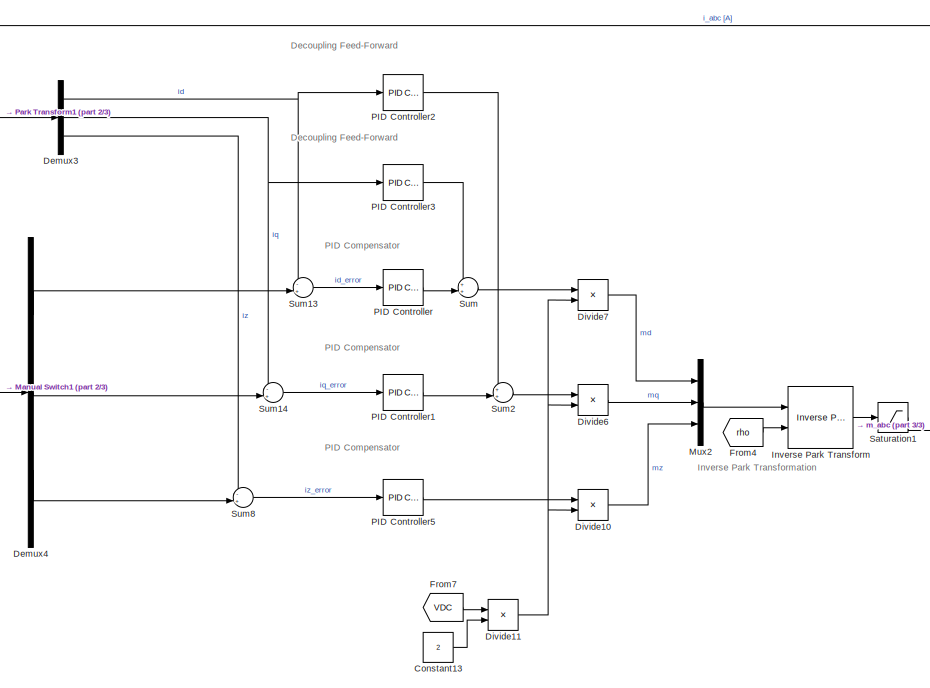
[diagram: root canvas - part 1/3, center side, full height]
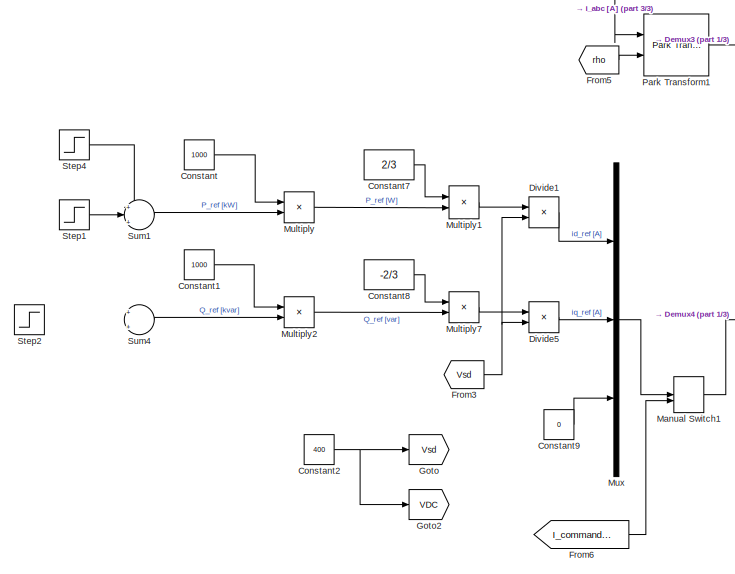
[diagram: root canvas - part 2/3, left side, full height]
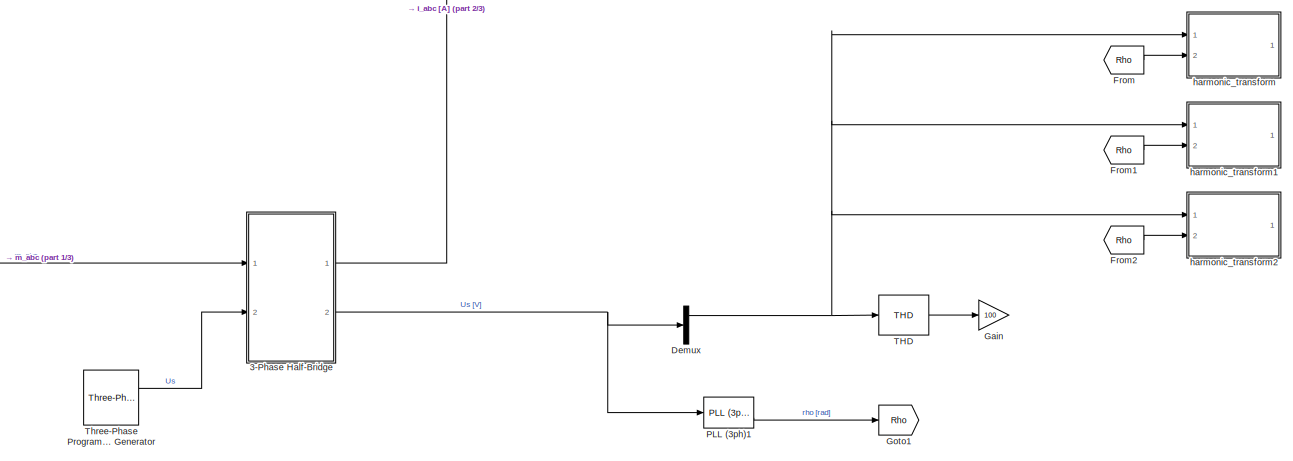
[diagram: root canvas - part 3/3, middle right region]
MODEL slx_9efd150aca10
KIND model
CONFIG AbsTol = auto
CONFIG EnableMultiTasking = on
CONFIG FixedStep = auto
CONFIG MaxStep = 0.001
CONFIG MinStep = auto
CONFIG RelTol = 1e-4
CONFIG SampleTimeConstraint = Unconstrained
CONFIG Solver = VariableStepAuto
CONFIG SolverName = VariableStepAuto
CONFIG StartTime = 0.0
CONFIG StopTime = 0.75
WORKSPACE source: mxarray member
WORKSPACE f0 = 50
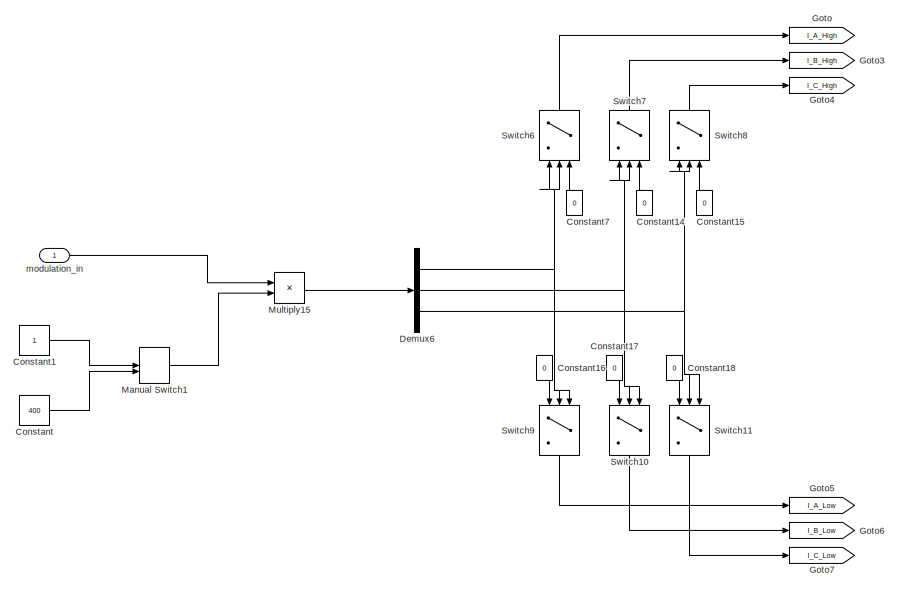
[diagram: 3-Phase Half-Bridge - part 1/3, top left region]
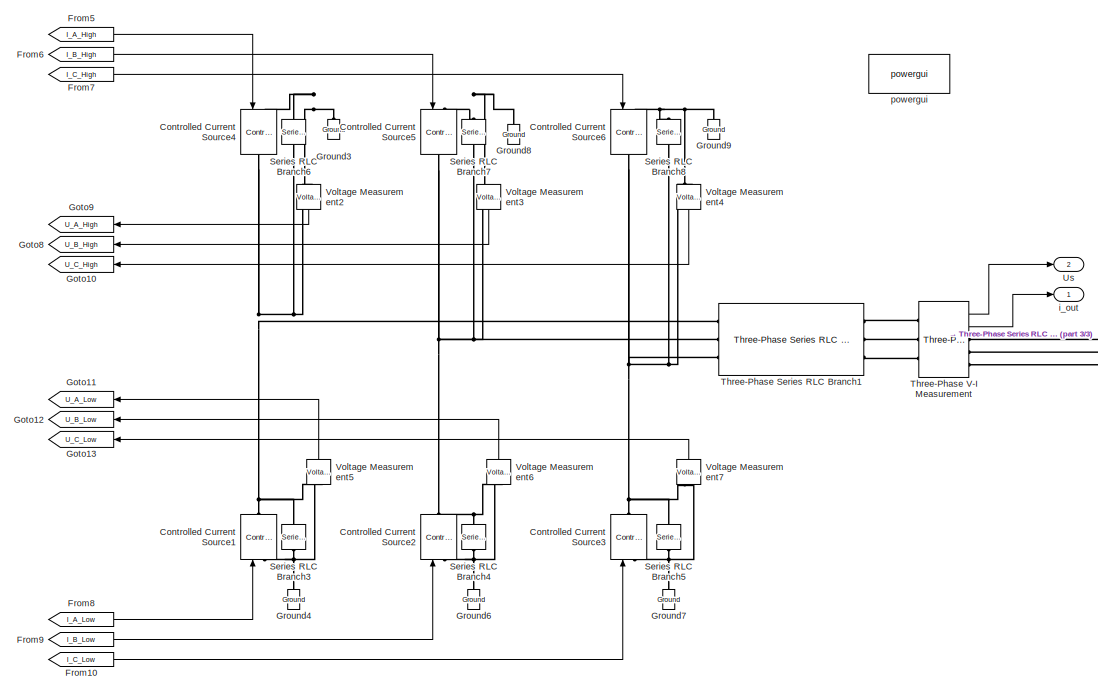
[diagram: 3-Phase Half-Bridge - part 2/3, bottom center region]
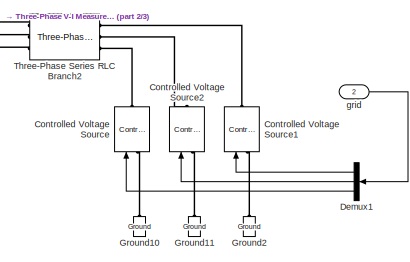
[diagram: 3-Phase Half-Bridge - part 3/3, bottom right region]
BLOCK [SubSystem] 3-Phase Half-Bridge
  Ports = [2, 2]
  RequestExecContextInheritance = off
BLOCK [Constant] 3-Phase Half-Bridge/Constant
  Value = 400
BLOCK [Constant] 3-Phase Half-Bridge/Constant1
BLOCK [Constant] 3-Phase Half-Bridge/Constant14
  NameLocation = left
  Value = 0
BLOCK [Constant] 3-Phase Half-Bridge/Constant15
  NameLocation = left
  Value = 0
BLOCK [Constant] 3-Phase Half-Bridge/Constant16
  NameLocation = left
  Value = 0
BLOCK [Constant] 3-Phase Half-Bridge/Constant17
  NameLocation = left
  Value = 0
BLOCK [Constant] 3-Phase Half-Bridge/Constant18
  NameLocation = left
  Value = 0
BLOCK [Constant] 3-Phase Half-Bridge/Constant7
  NameLocation = left
  Value = 0
BLOCK [Reference] 3-Phase Half-Bridge/Controlled Current Source1  REF=powerlib/Electrical
Sources/Controlled Current Source
  NameLocation = right
  Ports = [1, 0, 0, 0, 0, 1, 1]
  SourceBlock = powerlib/Electrical\nSources/Controlled Current Source
  SourceProductBaseCode = PS
  SourceType = Controlled Current Source
BLOCK [Reference] 3-Phase Half-Bridge/Controlled Current Source2  REF=powerlib/Electrical
Sources/Controlled Current Source
  NameLocation = right
  Ports = [1, 0, 0, 0, 0, 1, 1]
  SourceBlock = powerlib/Electrical\nSources/Controlled Current Source
  SourceProductBaseCode = PS
  SourceType = Controlled Current Source
BLOCK [Reference] 3-Phase Half-Bridge/Controlled Current Source3  REF=powerlib/Electrical
Sources/Controlled Current Source
  NameLocation = right
  Ports = [1, 0, 0, 0, 0, 1, 1]
  SourceBlock = powerlib/Electrical\nSources/Controlled Current Source
  SourceProductBaseCode = PS
  SourceType = Controlled Current Source
BLOCK [Reference] 3-Phase Half-Bridge/Controlled Current Source4  REF=powerlib/Electrical
Sources/Controlled Current Source
  NameLocation = right
  Ports = [1, 0, 0, 0, 0, 1, 1]
  SourceBlock = powerlib/Electrical\nSources/Controlled Current Source
  SourceProductBaseCode = PS
  SourceType = Controlled Current Source
BLOCK [Reference] 3-Phase Half-Bridge/Controlled Current Source5  REF=powerlib/Electrical
Sources/Controlled Current Source
  NameLocation = right
  Ports = [1, 0, 0, 0, 0, 1, 1]
  SourceBlock = powerlib/Electrical\nSources/Controlled Current Source
  SourceProductBaseCode = PS
  SourceType = Controlled Current Source
BLOCK [Reference] 3-Phase Half-Bridge/Controlled Current Source6  REF=powerlib/Electrical
Sources/Controlled Current Source
  NameLocation = right
  Ports = [1, 0, 0, 0, 0, 1, 1]
  SourceBlock = powerlib/Electrical\nSources/Controlled Current Source
  SourceProductBaseCode = PS
  SourceType = Controlled Current Source
BLOCK [Reference] 3-Phase Half-Bridge/Controlled Voltage Source  REF=powerlib/Electrical
Sources/Controlled Voltage Source
  NameLocation = right
  Ports = [1, 0, 0, 0, 0, 1, 1]
  SourceBlock = powerlib/Electrical\nSources/Controlled Voltage Source
  SourceProductBaseCode = PS
  SourceType = Controlled Voltage Source
BLOCK [Reference] 3-Phase Half-Bridge/Controlled Voltage Source1  REF=powerlib/Electrical
Sources/Controlled Voltage Source
  NameLocation = right
  Ports = [1, 0, 0, 0, 0, 1, 1]
  SourceBlock = powerlib/Electrical\nSources/Controlled Voltage Source
  SourceProductBaseCode = PS
  SourceType = Controlled Voltage Source
BLOCK [Reference] 3-Phase Half-Bridge/Controlled Voltage Source2  REF=powerlib/Electrical
Sources/Controlled Voltage Source
  NameLocation = right
  Ports = [1, 0, 0, 0, 0, 1, 1]
  SourceBlock = powerlib/Electrical\nSources/Controlled Voltage Source
  SourceProductBaseCode = PS
  SourceType = Controlled Voltage Source
BLOCK [Demux] 3-Phase Half-Bridge/Demux1
  Outputs = 3
  Ports = [1, 3]
BLOCK [Demux] 3-Phase Half-Bridge/Demux6
  Outputs = 3
  Ports = [1, 3]
BLOCK [From] 3-Phase Half-Bridge/From10
  GotoTag = I_C_Low
BLOCK [From] 3-Phase Half-Bridge/From5
  GotoTag = I_A_High
BLOCK [From] 3-Phase Half-Bridge/From6
  GotoTag = I_B_High
BLOCK [From] 3-Phase Half-Bridge/From7
  GotoTag = I_C_High
BLOCK [From] 3-Phase Half-Bridge/From8
  GotoTag = I_A_Low
BLOCK [From] 3-Phase Half-Bridge/From9
  GotoTag = I_B_Low
BLOCK [Goto] 3-Phase Half-Bridge/Goto
  GotoTag = I_A_High
BLOCK [Goto] 3-Phase Half-Bridge/Goto10
  GotoTag = U_C_High
BLOCK [Goto] 3-Phase Half-Bridge/Goto11
  GotoTag = U_A_Low
BLOCK [Goto] 3-Phase Half-Bridge/Goto12
  GotoTag = U_B_Low
BLOCK [Goto] 3-Phase Half-Bridge/Goto13
  GotoTag = U_C_Low
BLOCK [Goto] 3-Phase Half-Bridge/Goto3
  GotoTag = I_B_High
BLOCK [Goto] 3-Phase Half-Bridge/Goto4
  GotoTag = I_C_High
BLOCK [Goto] 3-Phase Half-Bridge/Goto5
  GotoTag = I_A_Low
BLOCK [Goto] 3-Phase Half-Bridge/Goto6
  GotoTag = I_B_Low
BLOCK [Goto] 3-Phase Half-Bridge/Goto7
  GotoTag = I_C_Low
BLOCK [Goto] 3-Phase Half-Bridge/Goto8
  GotoTag = U_B_High
BLOCK [Goto] 3-Phase Half-Bridge/Goto9
  GotoTag = U_A_High
BLOCK [Reference] 3-Phase Half-Bridge/Ground10  REF=powerlib/Elements/Ground
  NameLocation = right
  Ports = [0, 0, 0, 0, 0, 1]
  SourceBlock = powerlib/Elements/Ground
  SourceProductBaseCode = PS
  SourceType = Ground
BLOCK [Reference] 3-Phase Half-Bridge/Ground11  REF=powerlib/Elements/Ground
  NameLocation = right
  Ports = [0, 0, 0, 0, 0, 1]
  SourceBlock = powerlib/Elements/Ground
  SourceProductBaseCode = PS
  SourceType = Ground
BLOCK [Reference] 3-Phase Half-Bridge/Ground2  REF=powerlib/Elements/Ground
  NameLocation = right
  Ports = [0, 0, 0, 0, 0, 1]
  SourceBlock = powerlib/Elements/Ground
  SourceProductBaseCode = PS
  SourceType = Ground
BLOCK [Reference] 3-Phase Half-Bridge/Ground3  REF=powerlib/Elements/Ground
  NameLocation = right
  Ports = [0, 0, 0, 0, 0, 1]
  SourceBlock = powerlib/Elements/Ground
  SourceProductBaseCode = PS
  SourceType = Ground
BLOCK [Reference] 3-Phase Half-Bridge/Ground4  REF=powerlib/Elements/Ground
  NameLocation = right
  Ports = [0, 0, 0, 0, 0, 1]
  SourceBlock = powerlib/Elements/Ground
  SourceProductBaseCode = PS
  SourceType = Ground
BLOCK [Reference] 3-Phase Half-Bridge/Ground6  REF=powerlib/Elements/Ground
  NameLocation = right
  Ports = [0, 0, 0, 0, 0, 1]
  SourceBlock = powerlib/Elements/Ground
  SourceProductBaseCode = PS
  SourceType = Ground
BLOCK [Reference] 3-Phase Half-Bridge/Ground7  REF=powerlib/Elements/Ground
  NameLocation = right
  Ports = [0, 0, 0, 0, 0, 1]
  SourceBlock = powerlib/Elements/Ground
  SourceProductBaseCode = PS
  SourceType = Ground
BLOCK [Reference] 3-Phase Half-Bridge/Ground8  REF=powerlib/Elements/Ground
  NameLocation = right
  Ports = [0, 0, 0, 0, 0, 1]
  SourceBlock = powerlib/Elements/Ground
  SourceProductBaseCode = PS
  SourceType = Ground
BLOCK [Reference] 3-Phase Half-Bridge/Ground9  REF=powerlib/Elements/Ground
  NameLocation = right
  Ports = [0, 0, 0, 0, 0, 1]
  SourceBlock = powerlib/Elements/Ground
  SourceProductBaseCode = PS
  SourceType = Ground
BLOCK [ManualSwitch] 3-Phase Half-Bridge/Manual Switch1
BLOCK [Product] 3-Phase Half-Bridge/Multiply15
  Ports = [2, 1]
BLOCK [Reference] 3-Phase Half-Bridge/Series RLC Branch3  REF=powerlib/Elements/Series RLC Branch
  NameLocation = left
  Ports = [0, 0, 0, 0, 0, 1, 1]
  SourceBlock = powerlib/Elements/Series RLC Branch
  SourceProductBaseCode = PS
  SourceType = Series RLC Branch
BLOCK [Reference] 3-Phase Half-Bridge/Series RLC Branch4  REF=powerlib/Elements/Series RLC Branch
  NameLocation = left
  Ports = [0, 0, 0, 0, 0, 1, 1]
  SourceBlock = powerlib/Elements/Series RLC Branch
  SourceProductBaseCode = PS
  SourceType = Series RLC Branch
BLOCK [Reference] 3-Phase Half-Bridge/Series RLC Branch5  REF=powerlib/Elements/Series RLC Branch
  NameLocation = left
  Ports = [0, 0, 0, 0, 0, 1, 1]
  SourceBlock = powerlib/Elements/Series RLC Branch
  SourceProductBaseCode = PS
  SourceType = Series RLC Branch
BLOCK [Reference] 3-Phase Half-Bridge/Series RLC Branch6  REF=powerlib/Elements/Series RLC Branch
  NameLocation = left
  Ports = [0, 0, 0, 0, 0, 1, 1]
  SourceBlock = powerlib/Elements/Series RLC Branch
  SourceProductBaseCode = PS
  SourceType = Series RLC Branch
BLOCK [Reference] 3-Phase Half-Bridge/Series RLC Branch7  REF=powerlib/Elements/Series RLC Branch
  NameLocation = left
  Ports = [0, 0, 0, 0, 0, 1, 1]
  SourceBlock = powerlib/Elements/Series RLC Branch
  SourceProductBaseCode = PS
  SourceType = Series RLC Branch
BLOCK [Reference] 3-Phase Half-Bridge/Series RLC Branch8  REF=powerlib/Elements/Series RLC Branch
  NameLocation = left
  Ports = [0, 0, 0, 0, 0, 1, 1]
  SourceBlock = powerlib/Elements/Series RLC Branch
  SourceProductBaseCode = PS
  SourceType = Series RLC Branch
BLOCK [Switch] 3-Phase Half-Bridge/Switch10
  Criteria = u2 > Threshold
  InputSameDT = off
  NameLocation = left
  SaturateOnIntegerOverflow = off
BLOCK [Switch] 3-Phase Half-Bridge/Switch11
  Criteria = u2 > Threshold
  InputSameDT = off
  NameLocation = left
  SaturateOnIntegerOverflow = off
BLOCK [Switch] 3-Phase Half-Bridge/Switch6
  Criteria = u2 > Threshold
  InputSameDT = off
  NameLocation = left
  SaturateOnIntegerOverflow = off
BLOCK [Switch] 3-Phase Half-Bridge/Switch7
  Criteria = u2 > Threshold
  InputSameDT = off
  NameLocation = left
  SaturateOnIntegerOverflow = off
BLOCK [Switch] 3-Phase Half-Bridge/Switch8
  Criteria = u2 > Threshold
  InputSameDT = off
  NameLocation = left
  SaturateOnIntegerOverflow = off
BLOCK [Switch] 3-Phase Half-Bridge/Switch9
  Criteria = u2 > Threshold
  InputSameDT = off
  NameLocation = left
  SaturateOnIntegerOverflow = off
BLOCK [Reference] 3-Phase Half-Bridge/Three-Phase Series RLC Branch1  REF=powerlib/Elements/Three-Phase
Series RLC Branch
  AttributesFormatString = \n
  Ports = [0, 0, 0, 0, 0, 3, 3]
  SourceBlock = powerlib/Elements/Three-Phase\nSeries RLC Branch
  SourceProductBaseCode = PS
  SourceType = Three-Phase Series RLC Branch
BLOCK [Reference] 3-Phase Half-Bridge/Three-Phase Series RLC Branch2  REF=powerlib/Elements/Three-Phase
Series RLC Branch
  AttributesFormatString = \n
  Ports = [0, 0, 0, 0, 0, 3, 3]
  SourceBlock = powerlib/Elements/Three-Phase\nSeries RLC Branch
  SourceProductBaseCode = PS
  SourceType = Three-Phase Series RLC Branch
BLOCK [Reference] 3-Phase Half-Bridge/Three-Phase V-I Measurement  REF=powerlib/Measurements/Three-Phase
V-I Measurement
  Ports = [0, 2, 0, 0, 0, 3, 3]
  SourceBlock = powerlib/Measurements/Three-Phase\nV-I Measurement
  SourceProductBaseCode = PS
  SourceType = Three-Phase VI Measurement
BLOCK [Outport] 3-Phase Half-Bridge/Us
  Port = 2
  VectorParamsAs1DForOutWhenUnconnected = off
BLOCK [Reference] 3-Phase Half-Bridge/Voltage Measurement2  REF=powerlib/Measurements/Voltage Measurement
  NameLocation = left
  Ports = [0, 1, 0, 0, 0, 2]
  SourceBlock = powerlib/Measurements/Voltage Measurement
  SourceProductBaseCode = PS
  SourceType = Voltage Measurement
  UserDataPersistent = on
BLOCK [Reference] 3-Phase Half-Bridge/Voltage Measurement3  REF=powerlib/Measurements/Voltage Measurement
  NameLocation = left
  Ports = [0, 1, 0, 0, 0, 2]
  SourceBlock = powerlib/Measurements/Voltage Measurement
  SourceProductBaseCode = PS
  SourceType = Voltage Measurement
  UserDataPersistent = on
BLOCK [Reference] 3-Phase Half-Bridge/Voltage Measurement4  REF=powerlib/Measurements/Voltage Measurement
  NameLocation = left
  Ports = [0, 1, 0, 0, 0, 2]
  SourceBlock = powerlib/Measurements/Voltage Measurement
  SourceProductBaseCode = PS
  SourceType = Voltage Measurement
  UserDataPersistent = on
BLOCK [Reference] 3-Phase Half-Bridge/Voltage Measurement5  REF=powerlib/Measurements/Voltage Measurement
  NameLocation = left
  Ports = [0, 1, 0, 0, 0, 2]
  SourceBlock = powerlib/Measurements/Voltage Measurement
  SourceProductBaseCode = PS
  SourceType = Voltage Measurement
  UserDataPersistent = on
BLOCK [Reference] 3-Phase Half-Bridge/Voltage Measurement6  REF=powerlib/Measurements/Voltage Measurement
  NameLocation = left
  Ports = [0, 1, 0, 0, 0, 2]
  SourceBlock = powerlib/Measurements/Voltage Measurement
  SourceProductBaseCode = PS
  SourceType = Voltage Measurement
  UserDataPersistent = on
BLOCK [Reference] 3-Phase Half-Bridge/Voltage Measurement7  REF=powerlib/Measurements/Voltage Measurement
  NameLocation = left
  Ports = [0, 1, 0, 0, 0, 2]
  SourceBlock = powerlib/Measurements/Voltage Measurement
  SourceProductBaseCode = PS
  SourceType = Voltage Measurement
  UserDataPersistent = on
BLOCK [Inport] 3-Phase Half-Bridge/grid
  Port = 2
BLOCK [Outport] 3-Phase Half-Bridge/i_out
  VectorParamsAs1DForOutWhenUnconnected = off
BLOCK [Inport] 3-Phase Half-Bridge/modulation_in
BLOCK [Reference] 3-Phase Half-Bridge/powergui  REF=powerlib/powergui
  Ports = []
  Priority = 1
  SourceBlock = powerlib/powergui
  SourceProductBaseCode = PS
  SourceType = PSB option menu block
BLOCK [Constant] Constant
  Value = 1000
BLOCK [Constant] Constant1
  Value = 1000
BLOCK [Constant] Constant13
  Value = 2
BLOCK [Constant] Constant2
  Value = 400
BLOCK [Constant] Constant7
  Value = 2/3
BLOCK [Constant] Constant8
  Value = -2/3
BLOCK [Constant] Constant9
  Value = 0
BLOCK [Demux] Demux
  Outputs = 3
  Ports = [1, 3]
BLOCK [Demux] Demux3
  Outputs = 3
  Ports = [1, 3]
BLOCK [Demux] Demux4
  Outputs = 3
  Ports = [1, 3]
BLOCK [Product] Divide1
  Inputs = */
  Ports = [2, 1]
BLOCK [Product] Divide10
  Inputs = */
  Ports = [2, 1]
BLOCK [Product] Divide11
  Inputs = */
  Ports = [2, 1]
BLOCK [Product] Divide5
  Inputs = */
  Ports = [2, 1]
BLOCK [Product] Divide6
  Inputs = */
  Ports = [2, 1]
BLOCK [Product] Divide7
  Inputs = */
  Ports = [2, 1]
BLOCK [From] From
  GotoTag = Rho
BLOCK [From] From1
  GotoTag = Rho
BLOCK [From] From2
  GotoTag = Rho
BLOCK [From] From3
  GotoTag = Vsd
BLOCK [From] From4
  GotoTag = rho
BLOCK [From] From5
  GotoTag = rho
BLOCK [From] From6
  GotoTag = I_command_dq0
BLOCK [From] From7
  GotoTag = VDC
BLOCK [Gain] Gain
  Gain = 100
BLOCK [Goto] Goto
  GotoTag = Vsd
BLOCK [Goto] Goto1
  GotoTag = Rho
BLOCK [Goto] Goto2
  GotoTag = VDC
BLOCK [Reference] Inverse Park Transform  REF=eeTransforms/Inverse
Park Transform
  Ports = [2, 1]
  SourceBlock = eeTransforms/Inverse\nPark Transform
  SourceProductBaseCode = PS
  SourceType = Inverse Park Transform
BLOCK [ManualSwitch] Manual Switch1
BLOCK [Product] Multiply
  Ports = [2, 1]
BLOCK [Product] Multiply1
  Ports = [2, 1]
BLOCK [Product] Multiply2
  Ports = [2, 1]
BLOCK [Product] Multiply7
  Ports = [2, 1]
BLOCK [Mux] Mux
  DisplayOption = bar
  Inputs = 3
  Ports = [3, 1]
BLOCK [Mux] Mux2
  DisplayOption = bar
  Inputs = 3
  Ports = [3, 1]
BLOCK [Reference] PID Controller  REF=simulink/Continuous/PID Controller
  Ports = [1, 1]
  SourceBlock = simulink/Continuous/PID Controller
  SourceProductBaseCode = SL
  SourceType = PID 1dof
BLOCK [Reference] PID Controller1  REF=simulink/Continuous/PID Controller
  Ports = [1, 1]
  SourceBlock = simulink/Continuous/PID Controller
  SourceProductBaseCode = SL
  SourceType = PID 1dof
BLOCK [Reference] PID Controller2  REF=simulink/Continuous/PID Controller
  Ports = [1, 1]
  SourceBlock = simulink/Continuous/PID Controller
  SourceProductBaseCode = SL
  SourceType = PID 1dof
BLOCK [Reference] PID Controller3  REF=simulink/Continuous/PID Controller
  Ports = [1, 1]
  SourceBlock = simulink/Continuous/PID Controller
  SourceProductBaseCode = SL
  SourceType = PID 1dof
BLOCK [Reference] PID Controller5  REF=simulink/Continuous/PID Controller
  Ports = [1, 1]
  SourceBlock = simulink/Continuous/PID Controller
  SourceProductBaseCode = SL
  SourceType = PID 1dof
BLOCK [Reference] PLL (3ph)1  REF=powerlib_meascontrol/PLL/PLL
(3ph)
  Ports = [1, 2]
  SourceBlock = powerlib_meascontrol/PLL/PLL\n(3ph)
  SourceProductBaseCode = PS
  SourceType = PLL (3ph)
BLOCK [Reference] Park Transform1  REF=eeTransforms/Park Transform
  Ports = [2, 1]
  SourceBlock = eeTransforms/Park Transform
  SourceProductBaseCode = PS
  SourceType = Park Transform
BLOCK [Saturate] Saturation1
  LowerLimit = -1
  UpperLimit = 1
BLOCK [Step] Step1
  After = 8
  SampleTime = 0
  Time = 0.1
BLOCK [Step] Step2
  After = 6
  SampleTime = 0
  Time = 0.5
BLOCK [Step] Step4
  After = -4
  SampleTime = 0
  Time = 0.5
BLOCK [Sum] Sum
  Inputs = ++|
  Ports = [2, 1]
BLOCK [Sum] Sum1
  Inputs = +|+|+
  Ports = [3, 1]
BLOCK [Sum] Sum13
  Inputs = -+|
  Ports = [2, 1]
BLOCK [Sum] Sum14
  Inputs = -+|
  Ports = [2, 1]
BLOCK [Sum] Sum2
  Inputs = ++|
  Ports = [2, 1]
BLOCK [Sum] Sum4
  Inputs = +|+|+
  Ports = [3, 1]
BLOCK [Sum] Sum8
  Inputs = -+|
  Ports = [2, 1]
BLOCK [Reference] THD  REF=powerlib_meascontrol/Measurements/THD
  Ports = [1, 1]
  SourceBlock = powerlib_meascontrol/Measurements/THD
  SourceProductBaseCode = PS
  SourceType = THD
BLOCK [Reference] Three-Phase Programmable Generator  REF=powerlib_meascontrol/Pulse & Signal
Generators/Three-Phase
Programmable
Generator
  Ports = [0, 2]
  SourceBlock = powerlib_meascontrol/Pulse & Signal\nGenerators/Three-Phase\nProgrammable\nGenerator
  SourceProductBaseCode = PS
  SourceType = Three-Phase Programmable Generator
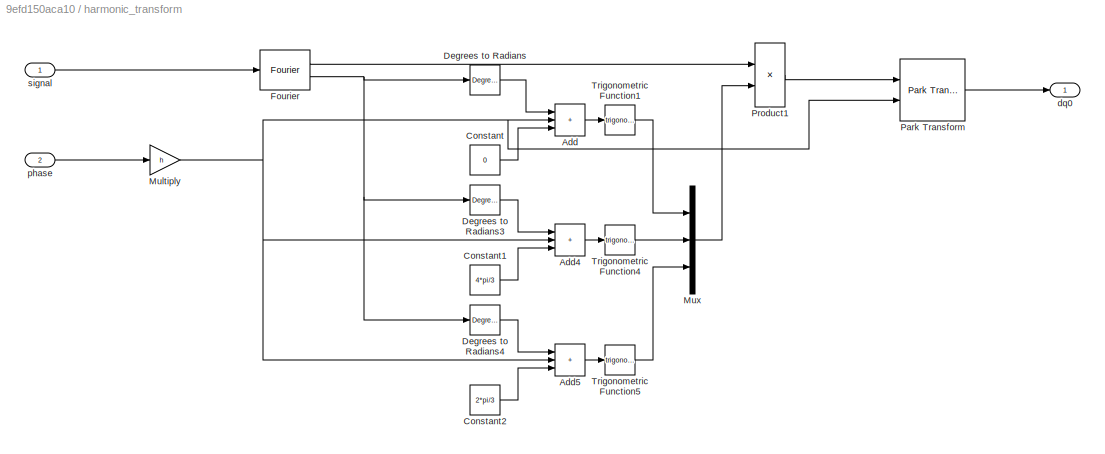
BLOCK [SubSystem] harmonic_transform
  Ports = [2, 1]
  RequestExecContextInheritance = off
BLOCK [Sum] harmonic_transform/Add
  IconShape = rectangular
  Inputs = +++
  Ports = [3, 1]
BLOCK [Sum] harmonic_transform/Add4
  IconShape = rectangular
  Inputs = +++
  Ports = [3, 1]
BLOCK [Sum] harmonic_transform/Add5
  IconShape = rectangular
  Inputs = +++
  Ports = [3, 1]
BLOCK [Constant] harmonic_transform/Constant
  Value = 0
BLOCK [Constant] harmonic_transform/Constant1
  Value = 4*pi/3
BLOCK [Constant] harmonic_transform/Constant2
  Value = 2*pi/3
BLOCK [Reference] harmonic_transform/Degrees to Radians  REF=simulink_extras/Transformations/Degrees to
Radians
  Ports = [1, 1]
  SourceBlock = simulink_extras/Transformations/Degrees to\nRadians
  SourceProductBaseCode = SL
  SourceType = DegreesToRadians
BLOCK [Reference] harmonic_transform/Degrees to Radians3  REF=simulink_extras/Transformations/Degrees to
Radians
  Ports = [1, 1]
  SourceBlock = simulink_extras/Transformations/Degrees to\nRadians
  SourceProductBaseCode = SL
  SourceType = DegreesToRadians
BLOCK [Reference] harmonic_transform/Degrees to Radians4  REF=simulink_extras/Transformations/Degrees to
Radians
  Ports = [1, 1]
  SourceBlock = simulink_extras/Transformations/Degrees to\nRadians
  SourceProductBaseCode = SL
  SourceType = DegreesToRadians
BLOCK [Reference] harmonic_transform/Fourier  REF=powerlib_meascontrol/Measurements/Fourier
  Ports = [1, 2]
  SourceBlock = powerlib_meascontrol/Measurements/Fourier
  SourceProductBaseCode = PS
  SourceType = Fourier
BLOCK [Gain] harmonic_transform/Multiply
  Gain = h
BLOCK [Mux] harmonic_transform/Mux
  DisplayOption = bar
  Inputs = 3
  Ports = [3, 1]
BLOCK [Reference] harmonic_transform/Park Transform  REF=eeTransforms/Park Transform
  Ports = [2, 1]
  SourceBlock = eeTransforms/Park Transform
  SourceProductBaseCode = PS
  SourceType = Park Transform
BLOCK [Product] harmonic_transform/Product1
  Ports = [2, 1]
  RndMeth = Zero
BLOCK [Trigonometry] harmonic_transform/Trigonometric Function1
  Ports = [1, 1]
BLOCK [Trigonometry] harmonic_transform/Trigonometric Function4
  Ports = [1, 1]
BLOCK [Trigonometry] harmonic_transform/Trigonometric Function5
  Ports = [1, 1]
BLOCK [Outport] harmonic_transform/dq0
BLOCK [Inport] harmonic_transform/phase
  Port = 2
BLOCK [Inport] harmonic_transform/signal
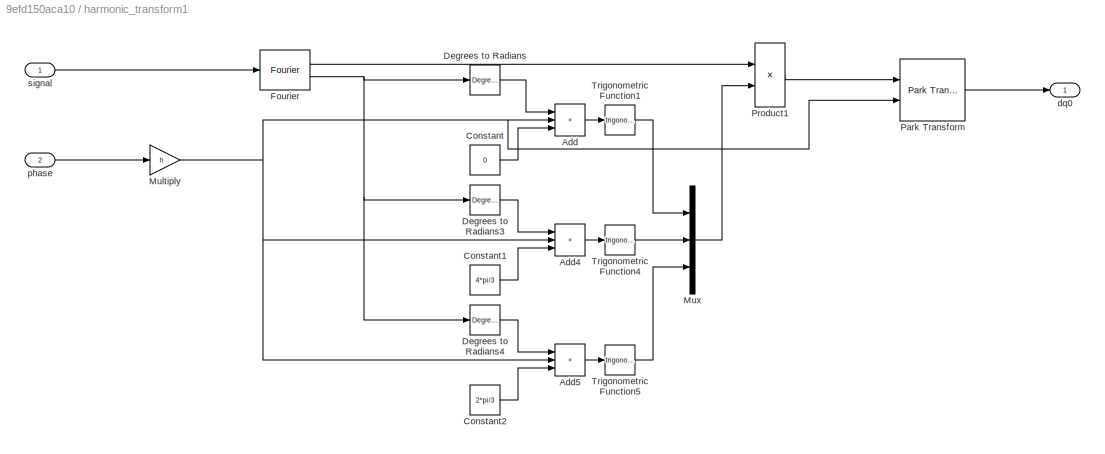
BLOCK [SubSystem] harmonic_transform1
  Ports = [2, 1]
  RequestExecContextInheritance = off
BLOCK [Sum] harmonic_transform1/Add
  IconShape = rectangular
  Inputs = +++
  Ports = [3, 1]
BLOCK [Sum] harmonic_transform1/Add4
  IconShape = rectangular
  Inputs = +++
  Ports = [3, 1]
BLOCK [Sum] harmonic_transform1/Add5
  IconShape = rectangular
  Inputs = +++
  Ports = [3, 1]
BLOCK [Constant] harmonic_transform1/Constant
  Value = 0
BLOCK [Constant] harmonic_transform1/Constant1
  Value = 4*pi/3
BLOCK [Constant] harmonic_transform1/Constant2
  Value = 2*pi/3
BLOCK [Reference] harmonic_transform1/Degrees to Radians  REF=simulink_extras/Transformations/Degrees to
Radians
  Ports = [1, 1]
  SourceBlock = simulink_extras/Transformations/Degrees to\nRadians
  SourceProductBaseCode = SL
  SourceType = DegreesToRadians
BLOCK [Reference] harmonic_transform1/Degrees to Radians3  REF=simulink_extras/Transformations/Degrees to
Radians
  Ports = [1, 1]
  SourceBlock = simulink_extras/Transformations/Degrees to\nRadians
  SourceProductBaseCode = SL
  SourceType = DegreesToRadians
BLOCK [Reference] harmonic_transform1/Degrees to Radians4  REF=simulink_extras/Transformations/Degrees to
Radians
  Ports = [1, 1]
  SourceBlock = simulink_extras/Transformations/Degrees to\nRadians
  SourceProductBaseCode = SL
  SourceType = DegreesToRadians
BLOCK [Reference] harmonic_transform1/Fourier  REF=powerlib_meascontrol/Measurements/Fourier
  Ports = [1, 2]
  SourceBlock = powerlib_meascontrol/Measurements/Fourier
  SourceProductBaseCode = PS
  SourceType = Fourier
BLOCK [Gain] harmonic_transform1/Multiply
  Gain = h
BLOCK [Mux] harmonic_transform1/Mux
  DisplayOption = bar
  Inputs = 3
  Ports = [3, 1]
BLOCK [Reference] harmonic_transform1/Park Transform  REF=eeTransforms/Park Transform
  Ports = [2, 1]
  SourceBlock = eeTransforms/Park Transform
  SourceProductBaseCode = PS
  SourceType = Park Transform
BLOCK [Product] harmonic_transform1/Product1
  Ports = [2, 1]
  RndMeth = Zero
BLOCK [Trigonometry] harmonic_transform1/Trigonometric Function1
  Ports = [1, 1]
BLOCK [Trigonometry] harmonic_transform1/Trigonometric Function4
  Ports = [1, 1]
BLOCK [Trigonometry] harmonic_transform1/Trigonometric Function5
  Ports = [1, 1]
BLOCK [Outport] harmonic_transform1/dq0
BLOCK [Inport] harmonic_transform1/phase
  Port = 2
BLOCK [Inport] harmonic_transform1/signal
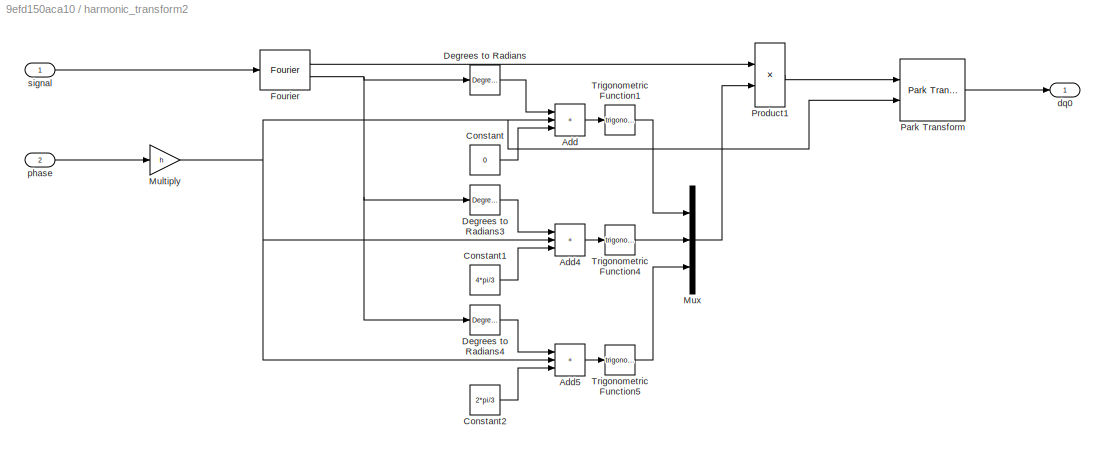
BLOCK [SubSystem] harmonic_transform2
  Ports = [2, 1]
  RequestExecContextInheritance = off
BLOCK [Sum] harmonic_transform2/Add
  IconShape = rectangular
  Inputs = +++
  Ports = [3, 1]
BLOCK [Sum] harmonic_transform2/Add4
  IconShape = rectangular
  Inputs = +++
  Ports = [3, 1]
BLOCK [Sum] harmonic_transform2/Add5
  IconShape = rectangular
  Inputs = +++
  Ports = [3, 1]
BLOCK [Constant] harmonic_transform2/Constant
  Value = 0
BLOCK [Constant] harmonic_transform2/Constant1
  Value = 4*pi/3
BLOCK [Constant] harmonic_transform2/Constant2
  Value = 2*pi/3
BLOCK [Reference] harmonic_transform2/Degrees to Radians  REF=simulink_extras/Transformations/Degrees to
Radians
  Ports = [1, 1]
  SourceBlock = simulink_extras/Transformations/Degrees to\nRadians
  SourceProductBaseCode = SL
  SourceType = DegreesToRadians
BLOCK [Reference] harmonic_transform2/Degrees to Radians3  REF=simulink_extras/Transformations/Degrees to
Radians
  Ports = [1, 1]
  SourceBlock = simulink_extras/Transformations/Degrees to\nRadians
  SourceProductBaseCode = SL
  SourceType = DegreesToRadians
BLOCK [Reference] harmonic_transform2/Degrees to Radians4  REF=simulink_extras/Transformations/Degrees to
Radians
  Ports = [1, 1]
  SourceBlock = simulink_extras/Transformations/Degrees to\nRadians
  SourceProductBaseCode = SL
  SourceType = DegreesToRadians
BLOCK [Reference] harmonic_transform2/Fourier  REF=powerlib_meascontrol/Measurements/Fourier
  Ports = [1, 2]
  SourceBlock = powerlib_meascontrol/Measurements/Fourier
  SourceProductBaseCode = PS
  SourceType = Fourier
BLOCK [Gain] harmonic_transform2/Multiply
  Gain = h
BLOCK [Mux] harmonic_transform2/Mux
  DisplayOption = bar
  Inputs = 3
  Ports = [3, 1]
BLOCK [Reference] harmonic_transform2/Park Transform  REF=eeTransforms/Park Transform
  Ports = [2, 1]
  SourceBlock = eeTransforms/Park Transform
  SourceProductBaseCode = PS
  SourceType = Park Transform
BLOCK [Product] harmonic_transform2/Product1
  Ports = [2, 1]
  RndMeth = Zero
BLOCK [Trigonometry] harmonic_transform2/Trigonometric Function1
  Ports = [1, 1]
BLOCK [Trigonometry] harmonic_transform2/Trigonometric Function4
  Ports = [1, 1]
BLOCK [Trigonometry] harmonic_transform2/Trigonometric Function5
  Ports = [1, 1]
BLOCK [Outport] harmonic_transform2/dq0
BLOCK [Inport] harmonic_transform2/phase
  Port = 2
BLOCK [Inport] harmonic_transform2/signal
ANNOTATION (root): Decoupling Feed-Forward
ANNOTATION (root): Inverse Park Transformation
ANNOTATION (root): PID Compensator
LINE 3-Phase Half-Bridge/Constant14:1 -> 3-Phase Half-Bridge/Switch7:3
LINE 3-Phase Half-Bridge/Constant15:1 -> 3-Phase Half-Bridge/Switch8:3
LINE 3-Phase Half-Bridge/Constant16:1 -> 3-Phase Half-Bridge/Switch9:1
LINE 3-Phase Half-Bridge/Constant17:1 -> 3-Phase Half-Bridge/Switch10:1
LINE 3-Phase Half-Bridge/Constant18:1 -> 3-Phase Half-Bridge/Switch11:1
LINE 3-Phase Half-Bridge/Constant1:1 -> 3-Phase Half-Bridge/Manual Switch1:1
LINE 3-Phase Half-Bridge/Constant7:1 -> 3-Phase Half-Bridge/Switch6:3
LINE 3-Phase Half-Bridge/Constant:1 -> 3-Phase Half-Bridge/Manual Switch1:2
LINE 3-Phase Half-Bridge/Demux1:1 -> 3-Phase Half-Bridge/Controlled Voltage Source1:1
LINE 3-Phase Half-Bridge/Demux1:2 -> 3-Phase Half-Bridge/Controlled Voltage Source2:1
LINE 3-Phase Half-Bridge/Demux1:3 -> 3-Phase Half-Bridge/Controlled Voltage Source:1
NET 3-Phase Half-Bridge/Demux6:1 -> 3-Phase Half-Bridge/Switch6:1, 3-Phase Half-Bridge/Switch6:2, 3-Phase Half-Bridge/Switch9:2, 3-Phase Half-Bridge/Switch9:3
NET 3-Phase Half-Bridge/Demux6:2 -> 3-Phase Half-Bridge/Switch10:2, 3-Phase Half-Bridge/Switch10:3, 3-Phase Half-Bridge/Switch7:1, 3-Phase Half-Bridge/Switch7:2
NET 3-Phase Half-Bridge/Demux6:3 -> 3-Phase Half-Bridge/Switch11:2, 3-Phase Half-Bridge/Switch11:3, 3-Phase Half-Bridge/Switch8:1, 3-Phase Half-Bridge/Switch8:2
LINE 3-Phase Half-Bridge/From10:1 -> 3-Phase Half-Bridge/Controlled Current Source3:1
LINE 3-Phase Half-Bridge/From5:1 -> 3-Phase Half-Bridge/Controlled Current Source4:1
LINE 3-Phase Half-Bridge/From6:1 -> 3-Phase Half-Bridge/Controlled Current Source5:1
LINE 3-Phase Half-Bridge/From7:1 -> 3-Phase Half-Bridge/Controlled Current Source6:1
LINE 3-Phase Half-Bridge/From8:1 -> 3-Phase Half-Bridge/Controlled Current Source1:1
LINE 3-Phase Half-Bridge/From9:1 -> 3-Phase Half-Bridge/Controlled Current Source2:1
LINE 3-Phase Half-Bridge/Manual Switch1:1 -> 3-Phase Half-Bridge/Multiply15:2
LINE 3-Phase Half-Bridge/Multiply15:1 -> 3-Phase Half-Bridge/Demux6:1
LINE 3-Phase Half-Bridge/Switch10:1 -> 3-Phase Half-Bridge/Goto6:1
LINE 3-Phase Half-Bridge/Switch11:1 -> 3-Phase Half-Bridge/Goto7:1
LINE 3-Phase Half-Bridge/Switch6:1 -> 3-Phase Half-Bridge/Goto:1
LINE 3-Phase Half-Bridge/Switch7:1 -> 3-Phase Half-Bridge/Goto3:1
LINE 3-Phase Half-Bridge/Switch8:1 -> 3-Phase Half-Bridge/Goto4:1
LINE 3-Phase Half-Bridge/Switch9:1 -> 3-Phase Half-Bridge/Goto5:1
LINE 3-Phase Half-Bridge/Three-Phase V-I Measurement:1 -> 3-Phase Half-Bridge/Us:1
LINE 3-Phase Half-Bridge/Three-Phase V-I Measurement:2 -> 3-Phase Half-Bridge/i_out:1
LINE 3-Phase Half-Bridge/Voltage Measurement2:1 -> 3-Phase Half-Bridge/Goto9:1
LINE 3-Phase Half-Bridge/Voltage Measurement3:1 -> 3-Phase Half-Bridge/Goto8:1
LINE 3-Phase Half-Bridge/Voltage Measurement4:1 -> 3-Phase Half-Bridge/Goto10:1
LINE 3-Phase Half-Bridge/Voltage Measurement5:1 -> 3-Phase Half-Bridge/Goto11:1
LINE 3-Phase Half-Bridge/Voltage Measurement6:1 -> 3-Phase Half-Bridge/Goto12:1
LINE 3-Phase Half-Bridge/Voltage Measurement7:1 -> 3-Phase Half-Bridge/Goto13:1
LINE 3-Phase Half-Bridge/grid:1 -> 3-Phase Half-Bridge/Demux1:1
LINE 3-Phase Half-Bridge/modulation_in:1 -> 3-Phase Half-Bridge/Multiply15:1
LINE 3-Phase Half-Bridge:1 -> Park Transform1:1
NET 3-Phase Half-Bridge:2 -> Demux:1, PLL (3ph)1:1
LINE Constant13:1 -> Divide11:2
LINE Constant1:1 -> Multiply2:1
NET Constant2:1 -> Goto2:1, Goto:1
LINE Constant7:1 -> Multiply1:1
LINE Constant8:1 -> Multiply7:1
LINE Constant9:1 -> Mux:3
LINE Constant:1 -> Multiply:1
NET Demux3:1 -> PID Controller2:1, Sum13:1
NET Demux3:2 -> PID Controller3:1, Sum14:1
LINE Demux3:3 -> Sum8:1
LINE Demux4:1 -> Sum13:2
LINE Demux4:2 -> Sum14:2
LINE Demux4:3 -> Sum8:2
NET Demux:1 -> THD:1, harmonic_transform1:1, harmonic_transform2:1, harmonic_transform:1
LINE Divide10:1 -> Mux2:3
NET Divide11:1 -> Divide10:2, Divide6:2, Divide7:2
LINE Divide1:1 -> Mux:1
LINE Divide5:1 -> Mux:2
LINE Divide6:1 -> Mux2:2
LINE Divide7:1 -> Mux2:1
LINE From1:1 -> harmonic_transform1:2
LINE From2:1 -> harmonic_transform2:2
NET From3:1 -> Divide1:2, Divide5:2
LINE From4:1 -> Inverse Park Transform:2
LINE From5:1 -> Park Transform1:2
LINE From6:1 -> Manual Switch1:2
LINE From7:1 -> Divide11:1
LINE From:1 -> harmonic_transform:2
LINE Inverse Park Transform:1 -> Saturation1:1
LINE Manual Switch1:1 -> Demux4:1
LINE Multiply1:1 -> Divide1:1
LINE Multiply2:1 -> Multiply7:2
LINE Multiply7:1 -> Divide5:1
LINE Multiply:1 -> Multiply1:2
LINE Mux2:1 -> Inverse Park Transform:1
LINE Mux:1 -> Manual Switch1:1
LINE PID Controller1:1 -> Sum2:2
LINE PID Controller2:1 -> Sum2:1
LINE PID Controller3:1 -> Sum:1
LINE PID Controller5:1 -> Divide10:1
LINE PID Controller:1 -> Sum:2
LINE PLL (3ph)1:2 -> Goto1:1
LINE Park Transform1:1 -> Demux3:1
LINE Saturation1:1 -> 3-Phase Half-Bridge:1
LINE Step1:1 -> Sum1:2
LINE Step4:1 -> Sum1:1
LINE Sum13:1 -> PID Controller:1
LINE Sum14:1 -> PID Controller1:1
LINE Sum1:1 -> Multiply:2
LINE Sum2:1 -> Divide6:1
LINE Sum4:1 -> Multiply2:2
LINE Sum8:1 -> PID Controller5:1
LINE Sum:1 -> Divide7:1
LINE THD:1 -> Gain:1
LINE Three-Phase Programmable Generator:1 -> 3-Phase Half-Bridge:2
LINE harmonic_transform/Add4:1 -> harmonic_transform/Trigonometric Function4:1
LINE harmonic_transform/Add5:1 -> harmonic_transform/Trigonometric Function5:1
LINE harmonic_transform/Add:1 -> harmonic_transform/Trigonometric Function1:1
LINE harmonic_transform/Constant1:1 -> harmonic_transform/Add4:3
LINE harmonic_transform/Constant2:1 -> harmonic_transform/Add5:3
LINE harmonic_transform/Constant:1 -> harmonic_transform/Add:3
LINE harmonic_transform/Degrees to Radians3:1 -> harmonic_transform/Add4:1
LINE harmonic_transform/Degrees to Radians4:1 -> harmonic_transform/Add5:1
LINE harmonic_transform/Degrees to Radians:1 -> harmonic_transform/Add:1
LINE harmonic_transform/Fourier:1 -> harmonic_transform/Product1:1
NET harmonic_transform/Fourier:2 -> harmonic_transform/Degrees to Radians3:1, harmonic_transform/Degrees to Radians4:1, harmonic_transform/Degrees to Radians:1
NET harmonic_transform/Multiply:1 -> harmonic_transform/Add4:2, harmonic_transform/Add5:2, harmonic_transform/Add:2, harmonic_transform/Park Transform:2
LINE harmonic_transform/Mux:1 -> harmonic_transform/Product1:2
LINE harmonic_transform/Park Transform:1 -> harmonic_transform/dq0:1
LINE harmonic_transform/Product1:1 -> harmonic_transform/Park Transform:1
LINE harmonic_transform/Trigonometric Function1:1 -> harmonic_transform/Mux:1
LINE harmonic_transform/Trigonometric Function4:1 -> harmonic_transform/Mux:2
LINE harmonic_transform/Trigonometric Function5:1 -> harmonic_transform/Mux:3
LINE harmonic_transform/phase:1 -> harmonic_transform/Multiply:1
LINE harmonic_transform/signal:1 -> harmonic_transform/Fourier:1
LINE harmonic_transform1/Add4:1 -> harmonic_transform1/Trigonometric Function4:1
LINE harmonic_transform1/Add5:1 -> harmonic_transform1/Trigonometric Function5:1
LINE harmonic_transform1/Add:1 -> harmonic_transform1/Trigonometric Function1:1
LINE harmonic_transform1/Constant1:1 -> harmonic_transform1/Add4:3
LINE harmonic_transform1/Constant2:1 -> harmonic_transform1/Add5:3
LINE harmonic_transform1/Constant:1 -> harmonic_transform1/Add:3
LINE harmonic_transform1/Degrees to Radians3:1 -> harmonic_transform1/Add4:1
LINE harmonic_transform1/Degrees to Radians4:1 -> harmonic_transform1/Add5:1
LINE harmonic_transform1/Degrees to Radians:1 -> harmonic_transform1/Add:1
LINE harmonic_transform1/Fourier:1 -> harmonic_transform1/Product1:1
NET harmonic_transform1/Fourier:2 -> harmonic_transform1/Degrees to Radians3:1, harmonic_transform1/Degrees to Radians4:1, harmonic_transform1/Degrees to Radians:1
NET harmonic_transform1/Multiply:1 -> harmonic_transform1/Add4:2, harmonic_transform1/Add5:2, harmonic_transform1/Add:2, harmonic_transform1/Park Transform:2
LINE harmonic_transform1/Mux:1 -> harmonic_transform1/Product1:2
LINE harmonic_transform1/Park Transform:1 -> harmonic_transform1/dq0:1
LINE harmonic_transform1/Product1:1 -> harmonic_transform1/Park Transform:1
LINE harmonic_transform1/Trigonometric Function1:1 -> harmonic_transform1/Mux:1
LINE harmonic_transform1/Trigonometric Function4:1 -> harmonic_transform1/Mux:2
LINE harmonic_transform1/Trigonometric Function5:1 -> harmonic_transform1/Mux:3
LINE harmonic_transform1/phase:1 -> harmonic_transform1/Multiply:1
LINE harmonic_transform1/signal:1 -> harmonic_transform1/Fourier:1
LINE harmonic_transform2/Add4:1 -> harmonic_transform2/Trigonometric Function4:1
LINE harmonic_transform2/Add5:1 -> harmonic_transform2/Trigonometric Function5:1
LINE harmonic_transform2/Add:1 -> harmonic_transform2/Trigonometric Function1:1
LINE harmonic_transform2/Constant1:1 -> harmonic_transform2/Add4:3
LINE harmonic_transform2/Constant2:1 -> harmonic_transform2/Add5:3
LINE harmonic_transform2/Constant:1 -> harmonic_transform2/Add:3
LINE harmonic_transform2/Degrees to Radians3:1 -> harmonic_transform2/Add4:1
LINE harmonic_transform2/Degrees to Radians4:1 -> harmonic_transform2/Add5:1
LINE harmonic_transform2/Degrees to Radians:1 -> harmonic_transform2/Add:1
LINE harmonic_transform2/Fourier:1 -> harmonic_transform2/Product1:1
NET harmonic_transform2/Fourier:2 -> harmonic_transform2/Degrees to Radians3:1, harmonic_transform2/Degrees to Radians4:1, harmonic_transform2/Degrees to Radians:1
NET harmonic_transform2/Multiply:1 -> harmonic_transform2/Add4:2, harmonic_transform2/Add5:2, harmonic_transform2/Add:2, harmonic_transform2/Park Transform:2
LINE harmonic_transform2/Mux:1 -> harmonic_transform2/Product1:2
LINE harmonic_transform2/Park Transform:1 -> harmonic_transform2/dq0:1
LINE harmonic_transform2/Product1:1 -> harmonic_transform2/Park Transform:1
LINE harmonic_transform2/Trigonometric Function1:1 -> harmonic_transform2/Mux:1
LINE harmonic_transform2/Trigonometric Function4:1 -> harmonic_transform2/Mux:2
LINE harmonic_transform2/Trigonometric Function5:1 -> harmonic_transform2/Mux:3
LINE harmonic_transform2/phase:1 -> harmonic_transform2/Multiply:1
LINE harmonic_transform2/signal:1 -> harmonic_transform2/Fourier:1
PNET net1: 3-Phase Half-Bridge/Controlled Current Source1:LConn1 -- 3-Phase Half-Bridge/Ground4:LConn1 -- 3-Phase Half-Bridge/Series RLC Branch3:RConn1 -- 3-Phase Half-Bridge/Voltage Measurement5:LConn1
PNET net2: 3-Phase Half-Bridge/Controlled Current Source1:RConn1 -- 3-Phase Half-Bridge/Controlled Current Source4:RConn1 -- 3-Phase Half-Bridge/Series RLC Branch3:LConn1 -- 3-Phase Half-Bridge/Series RLC Branch6:RConn1 -- 3-Phase Half-Bridge/Three-Phase Series RLC Branch1:LConn1 -- 3-Phase Half-Bridge/Voltage Measurement2:LConn2 -- 3-Phase Half-Bridge/Voltage Measurement5:LConn2
PNET net3: 3-Phase Half-Bridge/Controlled Current Source2:LConn1 -- 3-Phase Half-Bridge/Ground6:LConn1 -- 3-Phase Half-Bridge/Series RLC Branch4:RConn1 -- 3-Phase Half-Bridge/Voltage Measurement6:LConn1
PNET net4: 3-Phase Half-Bridge/Controlled Current Source2:RConn1 -- 3-Phase Half-Bridge/Controlled Current Source5:RConn1 -- 3-Phase Half-Bridge/Series RLC Branch4:LConn1 -- 3-Phase Half-Bridge/Series RLC Branch7:RConn1 -- 3-Phase Half-Bridge/Three-Phase Series RLC Branch1:LConn2 -- 3-Phase Half-Bridge/Voltage Measurement3:LConn2 -- 3-Phase Half-Bridge/Voltage Measurement6:LConn2
PNET net5: 3-Phase Half-Bridge/Controlled Current Source3:LConn1 -- 3-Phase Half-Bridge/Ground7:LConn1 -- 3-Phase Half-Bridge/Series RLC Branch5:RConn1 -- 3-Phase Half-Bridge/Voltage Measurement7:LConn1
PNET net6: 3-Phase Half-Bridge/Controlled Current Source3:RConn1 -- 3-Phase Half-Bridge/Controlled Current Source6:RConn1 -- 3-Phase Half-Bridge/Series RLC Branch5:LConn1 -- 3-Phase Half-Bridge/Series RLC Branch8:RConn1 -- 3-Phase Half-Bridge/Three-Phase Series RLC Branch1:LConn3 -- 3-Phase Half-Bridge/Voltage Measurement4:LConn2 -- 3-Phase Half-Bridge/Voltage Measurement7:LConn2
PNET net7: 3-Phase Half-Bridge/Controlled Current Source4:LConn1 -- 3-Phase Half-Bridge/Ground3:LConn1 -- 3-Phase Half-Bridge/Series RLC Branch6:LConn1 -- 3-Phase Half-Bridge/Voltage Measurement2:LConn1
PNET net8: 3-Phase Half-Bridge/Controlled Current Source5:LConn1 -- 3-Phase Half-Bridge/Ground8:LConn1 -- 3-Phase Half-Bridge/Series RLC Branch7:LConn1 -- 3-Phase Half-Bridge/Voltage Measurement3:LConn1
PNET net9: 3-Phase Half-Bridge/Controlled Current Source6:LConn1 -- 3-Phase Half-Bridge/Ground9:LConn1 -- 3-Phase Half-Bridge/Series RLC Branch8:LConn1 -- 3-Phase Half-Bridge/Voltage Measurement4:LConn1
PLINE 3-Phase Half-Bridge/Controlled Voltage Source1:LConn1 -- 3-Phase Half-Bridge/Ground2:LConn1
PLINE 3-Phase Half-Bridge/Controlled Voltage Source1:RConn1 -- 3-Phase Half-Bridge/Three-Phase Series RLC Branch2:RConn1
PLINE 3-Phase Half-Bridge/Controlled Voltage Source2:LConn1 -- 3-Phase Half-Bridge/Ground11:LConn1
PLINE 3-Phase Half-Bridge/Controlled Voltage Source2:RConn1 -- 3-Phase Half-Bridge/Three-Phase Series RLC Branch2:RConn2
PLINE 3-Phase Half-Bridge/Controlled Voltage Source:LConn1 -- 3-Phase Half-Bridge/Ground10:LConn1
PLINE 3-Phase Half-Bridge/Controlled Voltage Source:RConn1 -- 3-Phase Half-Bridge/Three-Phase Series RLC Branch2:RConn3
PLINE 3-Phase Half-Bridge/Three-Phase Series RLC Branch1:RConn1 -- 3-Phase Half-Bridge/Three-Phase V-I Measurement:LConn1
PLINE 3-Phase Half-Bridge/Three-Phase Series RLC Branch1:RConn2 -- 3-Phase Half-Bridge/Three-Phase V-I Measurement:LConn2
PLINE 3-Phase Half-Bridge/Three-Phase Series RLC Branch1:RConn3 -- 3-Phase Half-Bridge/Three-Phase V-I Measurement:LConn3
PLINE 3-Phase Half-Bridge/Three-Phase Series RLC Branch2:LConn1 -- 3-Phase Half-Bridge/Three-Phase V-I Measurement:RConn1
PLINE 3-Phase Half-Bridge/Three-Phase Series RLC Branch2:LConn2 -- 3-Phase Half-Bridge/Three-Phase V-I Measurement:RConn2
PLINE 3-Phase Half-Bridge/Three-Phase Series RLC Branch2:LConn3 -- 3-Phase Half-Bridge/Three-Phase V-I Measurement:RConn3
note: NET lines group one-source signal fan-out (src -> all destinations, sorted); 1:1 wires keep LINE; PNET lines group multi-terminal physical nets as a canonical sorted terminal list (undirected conserving connections); 2-terminal nets keep the pairwise PLINE form
